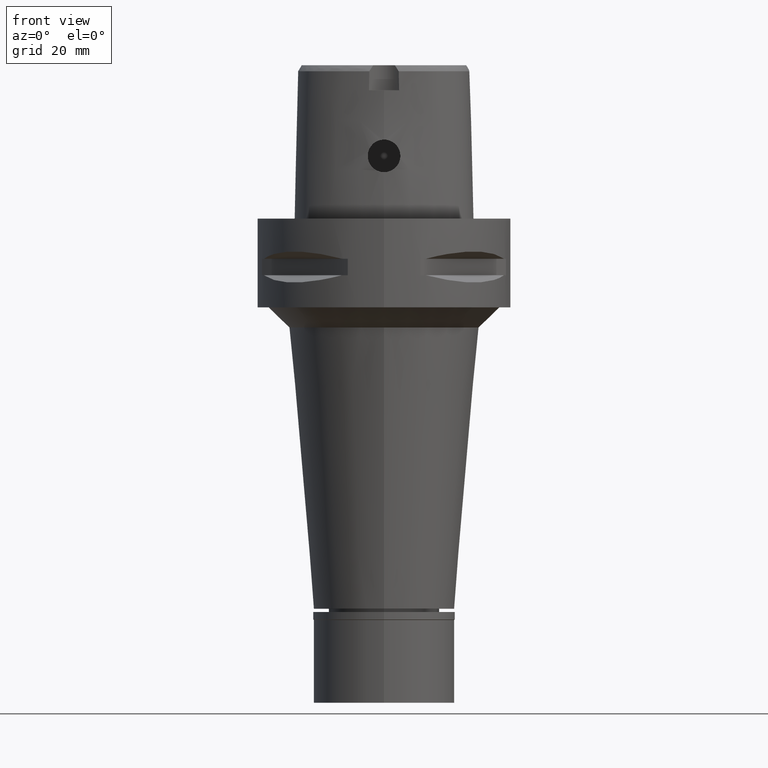
[diagram: clean part render]
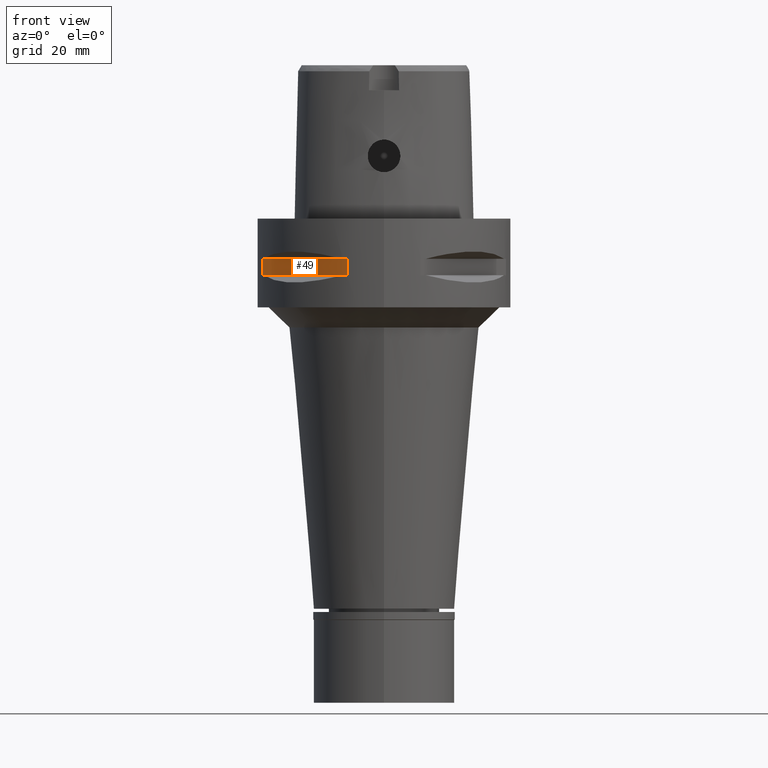
[diagram: same view with one face highlighted and labeled with its STEP entity id]
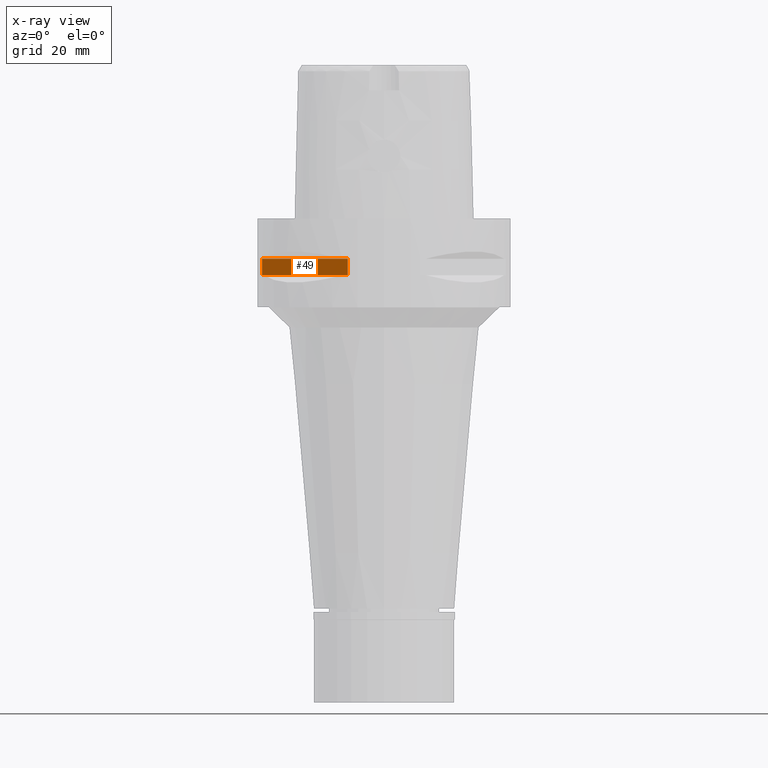
[diagram: x-ray of the same camera — body ghosted, the highlighted face saturated]
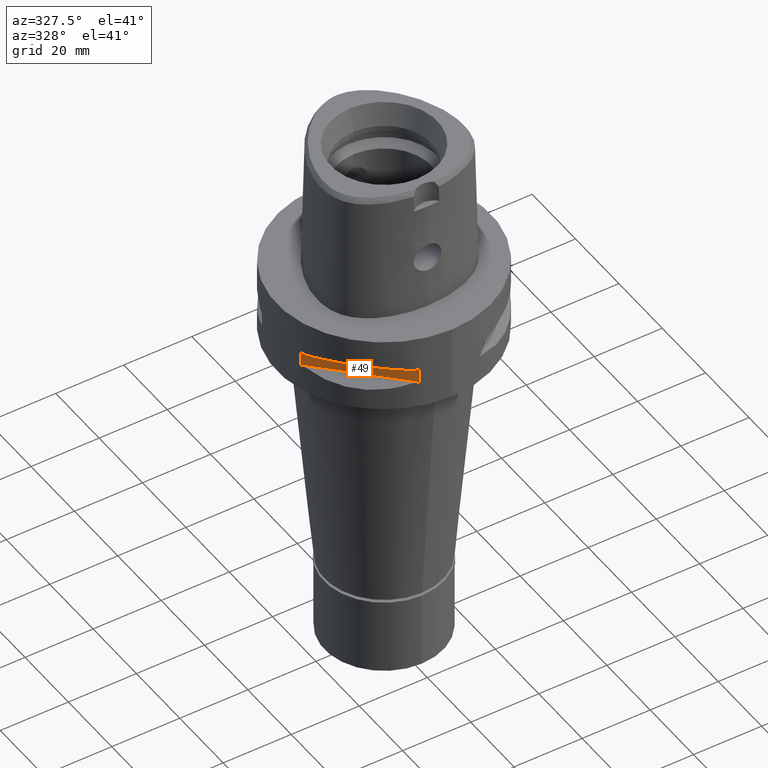
[diagram: same view with one face highlighted and labeled with its STEP entity id]
A machine part, front view. The second image highlights one B-rep face of the part: STEP entity #49.
The next image is the same camera in x-ray: the body ghosted, the highlighted face saturated — about 0% of this face is hidden behind the body in this view.
A second angle (auxiliary view) of the same face is appended — the face is thin or edge-on in the first view.
In plain terms, the highlighted planar face has unit normal (0.7071, 0.7071, 0).
Its self-contained STEP definition (entity closure, byte-faithful):
#49 = ADVANCED_FACE ( 'NONE', ( #3214 ), #1688, .F. ) ;
#183 = LINE ( 'NONE', #1026, #1476 ) ;
#605 = ORIENTED_EDGE ( 'NONE', *, *, #3262, .T. ) ;
#652 = VECTOR ( 'NONE', #2594, 1000.000000000000000 ) ;
#850 = AXIS2_PLACEMENT_3D ( 'NONE', #2362, #1634, #4016 ) ;
#881 = VERTEX_POINT ( 'NONE', #4340 ) ;
#883 = VERTEX_POINT ( 'NONE', #1522 ) ;
#924 = CARTESIAN_POINT ( 'NONE',  ( -8.981198972017999438, -30.19251670572000279, -14.05000000000000071 ) ) ;
#1001 = DIRECTION ( 'NONE',  ( 0.7071067811865474617, -0.7071067811865474617, 0.0000000000000000000 ) ) ;
#1026 = CARTESIAN_POINT ( 'NONE',  ( -30.19251670572000279, -8.981198972017999438, -9.950000000000001066 ) ) ;
#1193 = VERTEX_POINT ( 'NONE', #2567 ) ;
#1210 = DIRECTION ( 'NONE',  ( 0.7071067811865474617, -0.7071067811865474617, 0.0000000000000000000 ) ) ;
#1476 = VECTOR ( 'NONE', #1001, 1000.000000000000114 ) ;
#1522 = CARTESIAN_POINT ( 'NONE',  ( -8.981198972017999438, -30.19251670572000279, -9.950000000000001066 ) ) ;
#1634 = DIRECTION ( 'NONE',  ( 0.7071067811865475727, 0.7071067811865475727, 0.0000000000000000000 ) ) ;
#1688 = PLANE ( 'NONE',  #850 ) ;
#1694 = ORIENTED_EDGE ( 'NONE', *, *, #3421, .F. ) ;
#1955 = LINE ( 'NONE', #3950, #3712 ) ;
#1956 = ORIENTED_EDGE ( 'NONE', *, *, #2145, .T. ) ;
#2058 = ORIENTED_EDGE ( 'NONE', *, *, #2988, .T. ) ;
#2145 = EDGE_CURVE ( 'NONE', #1193, #3090, #2193, .T. ) ;
#2193 = LINE ( 'NONE', #3779, #652 ) ;
#2362 = CARTESIAN_POINT ( 'NONE',  ( -5.444722215136000187, -33.72899346260000186, -9.950000000000001066 ) ) ;
#2414 = DIRECTION ( 'NONE',  ( 0.0000000000000000000, 0.0000000000000000000, 1.000000000000000000 ) ) ;
#2567 = CARTESIAN_POINT ( 'NONE',  ( -30.19251670572000279, -8.981198972019999616, -9.950000000000001066 ) ) ;
#2594 = DIRECTION ( 'NONE',  ( 0.0000000000000000000, 0.0000000000000000000, -1.000000000000000000 ) ) ;
#2988 = EDGE_CURVE ( 'NONE', #3090, #881, #1955, .T. ) ;
#3090 = VERTEX_POINT ( 'NONE', #3532 ) ;
#3214 = FACE_OUTER_BOUND ( 'NONE', #4162, .T. ) ;
#3262 = EDGE_CURVE ( 'NONE', #881, #883, #3266, .T. ) ;
#3266 = LINE ( 'NONE', #924, #3371 ) ;
#3371 = VECTOR ( 'NONE', #2414, 1000.000000000000000 ) ;
#3421 = EDGE_CURVE ( 'NONE', #1193, #883, #183, .T. ) ;
#3532 = CARTESIAN_POINT ( 'NONE',  ( -30.19251670572000279, -8.981198972017999438, -14.05000000000000071 ) ) ;
#3712 = VECTOR ( 'NONE', #1210, 1000.000000000000114 ) ;
#3779 = CARTESIAN_POINT ( 'NONE',  ( -30.19251670572000279, -8.981198972017999438, -9.950000000000001066 ) ) ;
#3950 = CARTESIAN_POINT ( 'NONE',  ( -30.19251670572000279, -8.981198972017999438, -14.05000000000000071 ) ) ;
#4016 = DIRECTION ( 'NONE',  ( 0.0000000000000000000, 0.0000000000000000000, -1.000000000000000000 ) ) ;
#4162 = EDGE_LOOP ( 'NONE', ( #1694, #1956, #2058, #605 ) ) ;
#4340 = CARTESIAN_POINT ( 'NONE',  ( -8.981198972019999616, -30.19251670572000279, -14.05000000000000071 ) ) ;